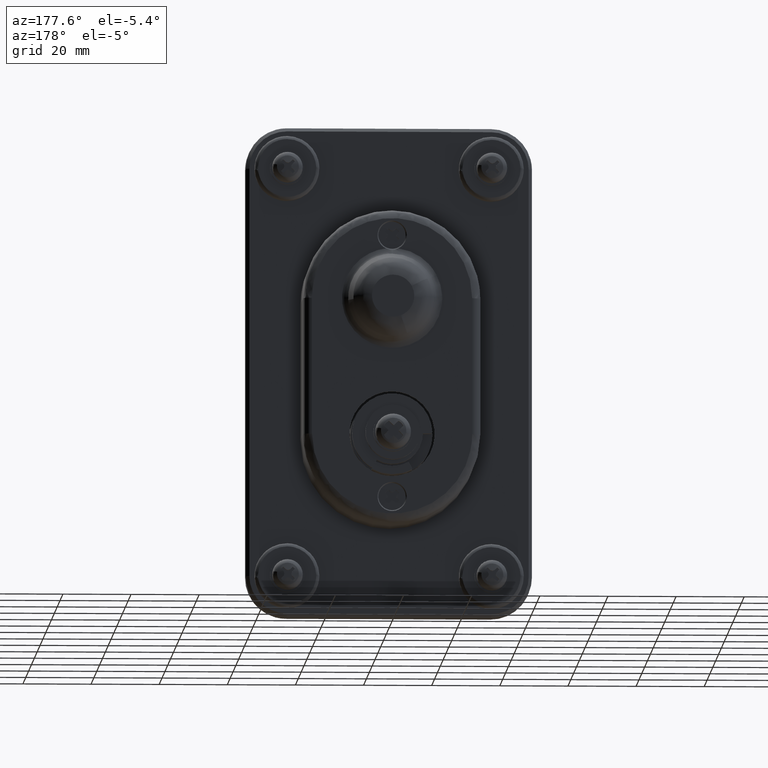
[diagram: clean part render]
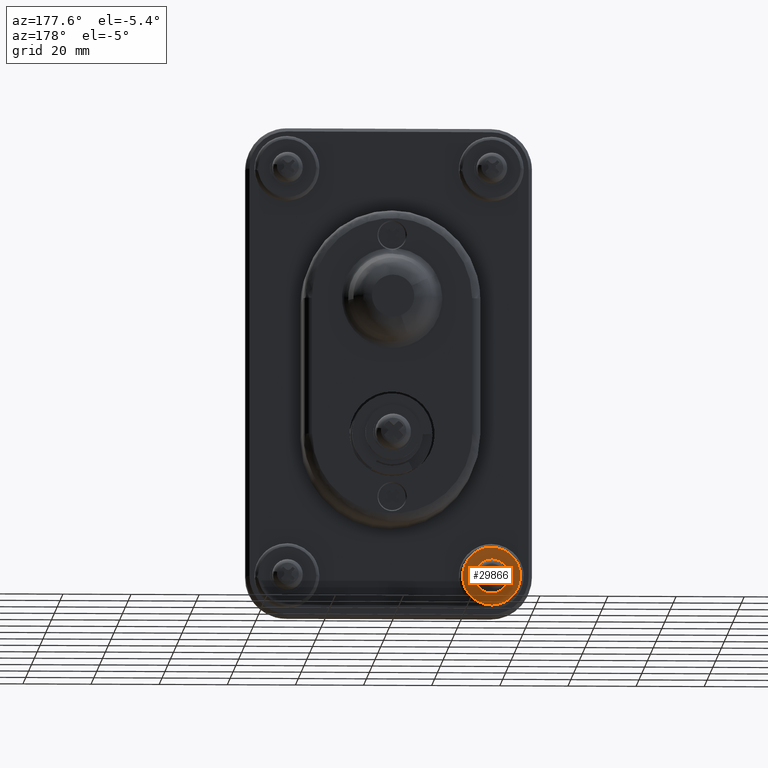
[diagram: same view with one face highlighted and labeled with its STEP entity id]
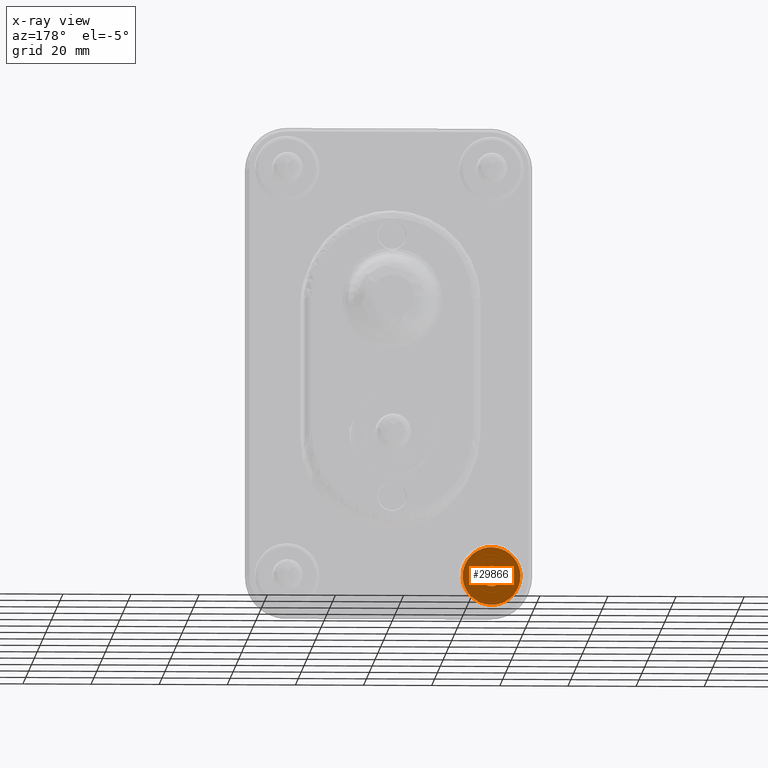
[diagram: x-ray of the same camera — body ghosted, the highlighted face saturated]
A machine part, auxiliary view. The second image highlights one B-rep face of the part: STEP entity #29866.
The next image is the same camera in x-ray: the body ghosted, the highlighted face saturated — about 0% of this face is hidden behind the body in this view.
In plain terms, the highlighted face is a freeform B-spline surface patch.
Its self-contained STEP definition (entity closure, byte-faithful):
#25586=CARTESIAN_POINT('',(-19.399999994671798,32.994404395229651,-39.816872047015181));
#25587=VERTEX_POINT('',#25586);
#25593=CARTESIAN_POINT('',(-19.399999994671798,30.000000000008150,-37.000017666340753));
#25594=VERTEX_POINT('',#25593);
#25595=CARTESIAN_POINT('',(-19.399999994671798,30.000000000008150,-37.000017666340753));
#25596=CARTESIAN_POINT('',(-19.399999994671802,32.822118199363665,-37.000017666340760));
#25597=CARTESIAN_POINT('',(-19.399999994671806,32.994404395229658,-39.816872047015181));
#25605=(BOUNDED_CURVE()B_SPLINE_CURVE(2,(#25595,#25596,#25597),.UNSPECIFIED.,.F.,.U.)B_SPLINE_CURVE_WITH_KNOTS((3,3),(0.500000000000000,0.739332962158876),.UNSPECIFIED.)CURVE()GEOMETRIC_REPRESENTATION_ITEM()RATIONAL_B_SPLINE_CURVE((1.0,0.719603993380515,0.976072041495119))REPRESENTATION_ITEM(''));
#25606=EDGE_CURVE('',#25594,#25587,#25605,.T.);
#25608=CARTESIAN_POINT('',(-19.399999994671798,27.020971421009339,-40.354120371086573));
#25609=VERTEX_POINT('',#25608);
#25610=CARTESIAN_POINT('',(-19.399999994671802,27.020971421009332,-40.354120371086573));
#25611=CARTESIAN_POINT('',(-19.399999994671806,27.000000000008157,-40.177690026080228));
#25612=CARTESIAN_POINT('',(-19.399999994671798,27.000000000008150,-40.000017666340753));
#25613=CARTESIAN_POINT('',(-19.399999994671806,27.000000000008153,-37.000017666340760));
#25614=CARTESIAN_POINT('',(-19.399999994671798,30.000000000008150,-37.000017666340753));
#25622=(BOUNDED_CURVE()B_SPLINE_CURVE(2,(#25610,#25611,#25612,#25613,#25614),.UNSPECIFIED.,.F.,.U.)B_SPLINE_CURVE_WITH_KNOTS((3,2,3),(0.229562473427650,0.250000000000000,0.500000000000000),.UNSPECIFIED.)CURVE()GEOMETRIC_REPRESENTATION_ITEM()RATIONAL_B_SPLINE_CURVE((0.956026754015413,0.976055948230555,1.0,0.707106781186548,1.0))REPRESENTATION_ITEM(''));
#25623=EDGE_CURVE('',#25609,#25594,#25622,.T.);
#25667=CARTESIAN_POINT('',(-19.399999994671798,30.000000000008150,-43.000017666340753));
#25668=VERTEX_POINT('',#25667);
#25669=CARTESIAN_POINT('',(-19.399999994671798,30.000000000008150,-43.000017666340753));
#25670=CARTESIAN_POINT('',(-19.399999994671809,27.335476423551146,-43.000017666340760));
#25671=CARTESIAN_POINT('',(-19.399999994671802,27.020971421009335,-40.354120371086573));
#25679=(BOUNDED_CURVE()B_SPLINE_CURVE(2,(#25669,#25670,#25671),.UNSPECIFIED.,.F.,.U.)B_SPLINE_CURVE_WITH_KNOTS((3,3),(0.0,0.229562473427650),.UNSPECIFIED.)CURVE()GEOMETRIC_REPRESENTATION_ITEM()RATIONAL_B_SPLINE_CURVE((1.0,0.731050832955992,0.956026754015413))REPRESENTATION_ITEM(''));
#25680=EDGE_CURVE('',#25668,#25609,#25679,.T.);
#25682=CARTESIAN_POINT('',(-19.399999994671802,32.994404395229651,-39.816872047015188));
#25683=CARTESIAN_POINT('',(-19.399999994671802,33.000000000008150,-39.908359375721972));
#25684=CARTESIAN_POINT('',(-19.399999994671798,33.000000000008150,-40.000017666340753));
#25685=CARTESIAN_POINT('',(-19.399999994671806,33.000000000008164,-43.000017666340753));
#25686=CARTESIAN_POINT('',(-19.399999994671798,30.000000000008150,-43.000017666340753));
#25694=(BOUNDED_CURVE()B_SPLINE_CURVE(2,(#25682,#25683,#25684,#25685,#25686),.UNSPECIFIED.,.F.,.U.)B_SPLINE_CURVE_WITH_KNOTS((3,2,3),(0.739332962158876,0.750000000000000,1.0),.UNSPECIFIED.)CURVE()GEOMETRIC_REPRESENTATION_ITEM()RATIONAL_B_SPLINE_CURVE((0.976072041495119,0.987502787806033,1.0,0.707106781186548,1.0))REPRESENTATION_ITEM(''));
#25695=EDGE_CURVE('',#25587,#25668,#25694,.T.);
#27771=CARTESIAN_POINT('',(-19.399999994503059,21.520690558760169,-40.592750401111161));
#27772=VERTEX_POINT('',#27771);
#27786=CARTESIAN_POINT('',(-19.399999994501400,29.999999999924491,-31.500017666434410));
#27787=VERTEX_POINT('',#27786);
#27788=CARTESIAN_POINT('',(-19.399999994503055,21.520690558760172,-40.592750401111161));
#27789=CARTESIAN_POINT('',(-19.399999994503030,21.499998805372449,-40.296745240594767));
#27790=CARTESIAN_POINT('',(-19.399999994502998,21.499998826567850,-40.000017748457793));
#27791=CARTESIAN_POINT('',(-19.399999994502171,21.499999433727403,-31.500017706030466));
#27792=CARTESIAN_POINT('',(-19.399999994501400,29.999999999924491,-31.500017666434410));
#27800=(BOUNDED_CURVE()B_SPLINE_CURVE(2,(#27788,#27789,#27790,#27791,#27792),.UNSPECIFIED.,.F.,.U.)B_SPLINE_CURVE_WITH_KNOTS((3,2,3),(0.237833686303915,0.250000000000000,0.500000000000000),.UNSPECIFIED.)CURVE()GEOMETRIC_REPRESENTATION_ITEM()RATIONAL_B_SPLINE_CURVE((0.972879875898017,0.985746276881838,1.0,0.707106781186548,1.0))REPRESENTATION_ITEM(''));
#27801=EDGE_CURVE('',#27772,#27787,#27800,.T.);
#27803=CARTESIAN_POINT('',(-19.399999994503059,38.499330092663200,-39.893206302959470));
#27804=VERTEX_POINT('',#27803);
#27805=CARTESIAN_POINT('',(-19.399999994501400,29.999999999924491,-31.500017666434410));
#27806=CARTESIAN_POINT('',(-19.399999994502231,38.393852003655248,-31.500017658770997));
#27807=CARTESIAN_POINT('',(-19.399999994503062,38.499330092663200,-39.893206302959477));
#27815=(BOUNDED_CURVE()B_SPLINE_CURVE(2,(#27805,#27806,#27807),.UNSPECIFIED.,.F.,.U.)B_SPLINE_CURVE_WITH_KNOTS((3,3),(0.500000000000000,0.747784295732627),.UNSPECIFIED.)CURVE()GEOMETRIC_REPRESENTATION_ITEM()RATIONAL_B_SPLINE_CURVE((1.0,0.709702640205786,0.994854295208774))REPRESENTATION_ITEM(''));
#27816=EDGE_CURVE('',#27787,#27804,#27815,.T.);
#27862=CARTESIAN_POINT('',(-19.399999994501400,29.999999999956110,-48.500017666401789));
#27863=VERTEX_POINT('',#27862);
#27864=CARTESIAN_POINT('',(-19.399999994503055,38.499330092663200,-39.893206302959470));
#27865=CARTESIAN_POINT('',(-19.399999994503052,38.500001213269712,-39.946609868653177));
#27866=CARTESIAN_POINT('',(-19.399999994503052,38.500001209446062,-40.000017651202192));
#27867=CARTESIAN_POINT('',(-19.399999994502227,38.500000600900954,-48.500017658833677));
#27868=CARTESIAN_POINT('',(-19.399999994501400,29.999999999956110,-48.500017666401789));
#27876=(BOUNDED_CURVE()B_SPLINE_CURVE(2,(#27864,#27865,#27866,#27867,#27868),.UNSPECIFIED.,.F.,.U.)B_SPLINE_CURVE_WITH_KNOTS((3,2,3),(0.747784295732627,0.750000000000000,1.0),.UNSPECIFIED.)CURVE()GEOMETRIC_REPRESENTATION_ITEM()RATIONAL_B_SPLINE_CURVE((0.994854295208774,0.997404140980761,1.0,0.707106781186548,1.0))REPRESENTATION_ITEM(''));
#27877=EDGE_CURVE('',#27804,#27863,#27876,.T.);
#27879=CARTESIAN_POINT('',(-19.399999994501400,29.999999999956110,-48.500017666401789));
#27880=CARTESIAN_POINT('',(-19.399999994502231,22.073436201712472,-48.500017708860149));
#27881=CARTESIAN_POINT('',(-19.399999994503055,21.520690558760172,-40.592750401111161));
#27889=(BOUNDED_CURVE()B_SPLINE_CURVE(2,(#27879,#27880,#27881),.UNSPECIFIED.,.F.,.U.)B_SPLINE_CURVE_WITH_KNOTS((3,3),(0.0,0.237833686303915),.UNSPECIFIED.)CURVE()GEOMETRIC_REPRESENTATION_ITEM()RATIONAL_B_SPLINE_CURVE((1.0,0.721360504304710,0.972879875898017))REPRESENTATION_ITEM(''));
#27890=EDGE_CURVE('',#27863,#27772,#27889,.T.);
#29849=CARTESIAN_POINT('',(-19.399999994544000,39.348396735334923,-30.650867000296682));
#29850=CARTESIAN_POINT('',(-19.399999994544000,39.348396735369697,-49.349169396447671));
#29851=CARTESIAN_POINT('',(-19.399999994544000,20.651901029997560,-30.650867000331441));
#29852=CARTESIAN_POINT('',(-19.399999994544000,20.651901030032331,-49.349169396482438));
#29853=B_SPLINE_SURFACE_WITH_KNOTS('',1,1,((#29849,#29851),(#29850,#29852)),.UNSPECIFIED.,.F.,.F.,.U.,(2,2),(2,2),(0.0,18.698302396151000),(0.0,18.696495705337369),.UNSPECIFIED.);
#29854=ORIENTED_EDGE('',*,*,#27877,.F.);
#29855=ORIENTED_EDGE('',*,*,#27816,.F.);
#29856=ORIENTED_EDGE('',*,*,#27801,.F.);
#29857=ORIENTED_EDGE('',*,*,#27890,.F.);
#29858=EDGE_LOOP('',(#29854,#29855,#29856,#29857));
#29859=FACE_OUTER_BOUND('',#29858,.T.);
#29860=ORIENTED_EDGE('',*,*,#25606,.T.);
#29861=ORIENTED_EDGE('',*,*,#25695,.T.);
#29862=ORIENTED_EDGE('',*,*,#25680,.T.);
#29863=ORIENTED_EDGE('',*,*,#25623,.T.);
#29864=EDGE_LOOP('',(#29860,#29861,#29862,#29863));
#29865=FACE_BOUND('',#29864,.T.);
#29866=ADVANCED_FACE('',(#29859,#29865),#29853,.F.);